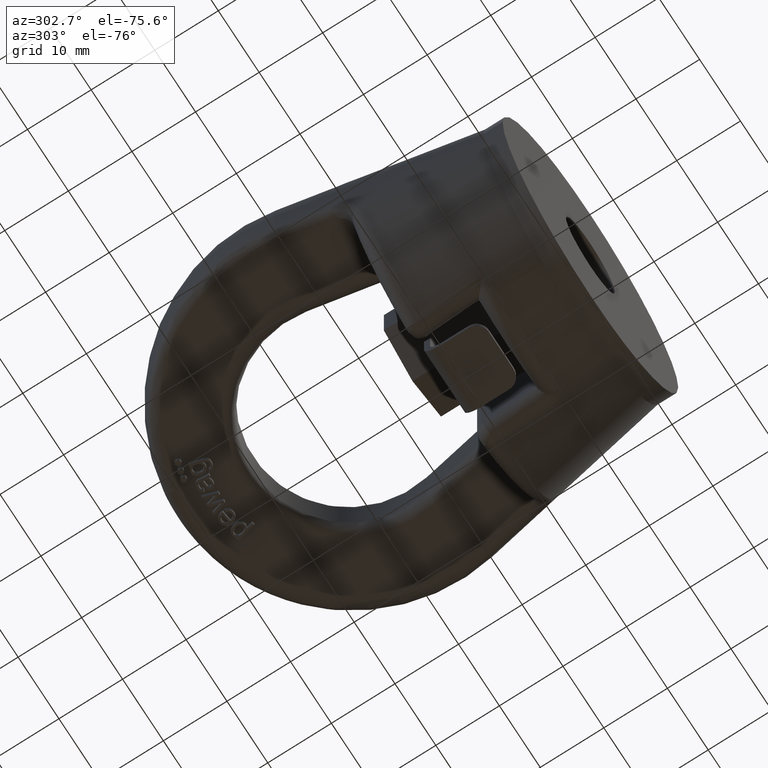
[diagram: clean part render]
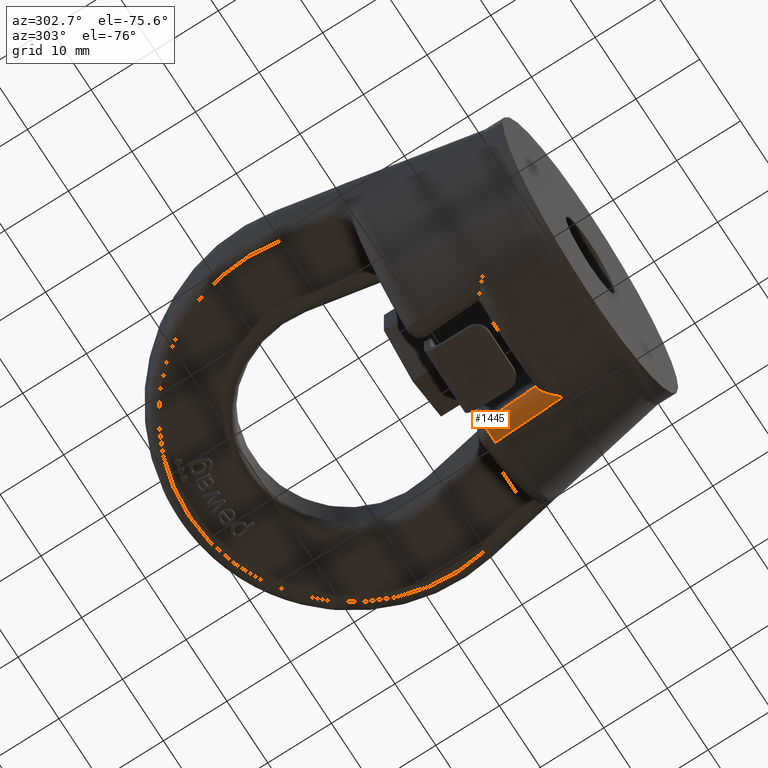
[diagram: same view with one face highlighted and labeled with its STEP entity id]
A machine part, auxiliary view. The second image highlights one B-rep face of the part: STEP entity #1445.
In plain terms, the highlighted face is a freeform B-spline surface patch.
Its self-contained STEP definition (entity closure, byte-faithful):
#1037=(
BOUNDED_SURFACE()
B_SPLINE_SURFACE(3,2,((#8554,#8555,#8556),(#8557,#8558,#8559),(#8560,#8561,
#8562),(#8563,#8564,#8565)),.UNSPECIFIED.,.F.,.F.,.F.)
B_SPLINE_SURFACE_WITH_KNOTS((4,4),(3,3),(0.,1.),(0.,1.),.UNSPECIFIED.)
GEOMETRIC_REPRESENTATION_ITEM()
RATIONAL_B_SPLINE_SURFACE(((1.,0.537545462576301,1.),(1.,0.543833961171944,
1.),(1.,0.549419756852323,1.),(1.,0.554499912207564,1.)))
REPRESENTATION_ITEM('')
SURFACE()
);
#1212=FACE_OUTER_BOUND('',#1979,.T.);
#1445=ADVANCED_FACE('',(#1212),#1037,.T.);
#1979=EDGE_LOOP('',(#3354,#3355,#3356,#3357,#3358));
#3354=ORIENTED_EDGE('',*,*,#4609,.F.);
#3355=ORIENTED_EDGE('',*,*,#4626,.T.);
#3356=ORIENTED_EDGE('',*,*,#4325,.F.);
#3357=ORIENTED_EDGE('',*,*,#4627,.F.);
#3358=ORIENTED_EDGE('',*,*,#4611,.F.);
#3940=VERTEX_POINT('',#6602);
#3941=VERTEX_POINT('',#6610);
#4130=VERTEX_POINT('',#8411);
#4131=VERTEX_POINT('',#8419);
#4132=VERTEX_POINT('',#8426);
#4325=EDGE_CURVE('',#3940,#3941,#4869,.T.);
#4609=EDGE_CURVE('',#4130,#4131,#5000,.T.);
#4611=EDGE_CURVE('',#4131,#4132,#5001,.T.);
#4626=EDGE_CURVE('',#4130,#3941,#5006,.T.);
#4627=EDGE_CURVE('',#4132,#3940,#5007,.T.);
#4869=B_SPLINE_CURVE_WITH_KNOTS('',3,(#6603,#6604,#6605,#6606,#6607,#6608,
#6609),.UNSPECIFIED.,.F.,.F.,(4,3,4),(0.,0.658722175532028,1.),
 .UNSPECIFIED.);
#5000=B_SPLINE_CURVE_WITH_KNOTS('',3,(#8412,#8413,#8414,#8415,#8416,#8417,
#8418),.UNSPECIFIED.,.F.,.F.,(4,3,4),(0.,0.414484760735074,1.),
 .UNSPECIFIED.);
#5001=B_SPLINE_CURVE_WITH_KNOTS('',3,(#8422,#8423,#8424,#8425),
 .UNSPECIFIED.,.F.,.F.,(4,4),(0.,1.),.UNSPECIFIED.);
#5006=B_SPLINE_CURVE_WITH_KNOTS('',3,(#8513,#8514,#8515,#8516,#8517,#8518,
#8519,#8520,#8521,#8522,#8523,#8524,#8525,#8526,#8527,#8528,#8529,#8530,
#8531),.UNSPECIFIED.,.F.,.F.,(4,3,3,3,3,3,4),(0.,0.157069506982715,0.327463597267809,
0.495730377638442,0.663313203288204,0.831739711890183,1.),.UNSPECIFIED.);
#5007=B_SPLINE_CURVE_WITH_KNOTS('',3,(#8532,#8533,#8534,#8535,#8536,#8537,
#8538,#8539,#8540,#8541,#8542,#8543,#8544,#8545,#8546,#8547,#8548,#8549,
#8550,#8551,#8552,#8553),.UNSPECIFIED.,.F.,.F.,(4,3,3,3,3,3,3,4),(0.,0.110519095796418,
0.220815581529207,0.332091500753021,0.507353801451674,0.751980024214066,
0.997854379311542,1.),.UNSPECIFIED.);
#6602=CARTESIAN_POINT('',(9.8436986509527,10.6307471677297,-20.7134289340295));
#6603=CARTESIAN_POINT('',(9.8436986509527,10.6307471677297,-20.7134289340295));
#6604=CARTESIAN_POINT('',(9.8261270603324,12.9553731248613,-21.2052788562981));
#6605=CARTESIAN_POINT('',(9.80964311959765,15.2808659048881,-21.6930824065875));
#6606=CARTESIAN_POINT('',(9.79406771798124,17.607032894456,-22.1776600483657));
#6607=CARTESIAN_POINT('',(9.785998241722,18.8121992047466,-22.4287153901405));
#6608=CARTESIAN_POINT('',(9.77817334054044,20.0175486590907,-22.6789007834092));
#6609=CARTESIAN_POINT('',(9.7705721548352,21.2230603757973,-22.9283069970431));
#6610=CARTESIAN_POINT('',(9.7705721548352,21.2230603757973,-22.9283069970431));
#8411=CARTESIAN_POINT('',(7.00000000000005,21.5,-21.1011767892322));
#8412=CARTESIAN_POINT('',(7.00000000000005,21.5,-21.1011767892322));
#8413=CARTESIAN_POINT('',(7.00000000000005,20.3253006100527,-20.8612686828816));
#8414=CARTESIAN_POINT('',(7.00000000000005,19.1507243329296,-20.6207567892393));
#8415=CARTESIAN_POINT('',(7.00000000000005,17.9762857267263,-20.3795752880943));
#8416=CARTESIAN_POINT('',(7.00000000000005,16.3172340359271,-20.0388741436066));
#8417=CARTESIAN_POINT('',(7.00000000000005,14.6584555780633,-19.6968388052815));
#8418=CARTESIAN_POINT('',(7.00000000000004,13.,-19.3532476555268));
#8419=CARTESIAN_POINT('',(7.00000000000004,13.,-19.3532476555268));
#8422=CARTESIAN_POINT('',(7.00000000000004,13.,-19.3532476555268));
#8423=CARTESIAN_POINT('',(7.00000000000004,13.,-19.486538751602));
#8424=CARTESIAN_POINT('',(7.0128894870163,13.,-19.620440365403));
#8425=CARTESIAN_POINT('',(7.03834485990594,13.,-19.7512782050519));
#8426=CARTESIAN_POINT('',(7.03834485990594,13.,-19.7512782050519));
#8513=CARTESIAN_POINT('',(7.00000000000005,21.5,-21.1011767892322));
#8514=CARTESIAN_POINT('',(7.00000000000005,21.4692142584465,-21.3042605953684));
#8515=CARTESIAN_POINT('',(7.03230881549454,21.438072821593,-21.5097004041404));
#8516=CARTESIAN_POINT('',(7.09468827129538,21.4087436349694,-21.7031930306246));
#8517=CARTESIAN_POINT('',(7.16221772740608,21.3769930530601,-21.9126602608233));
#8518=CARTESIAN_POINT('',(7.26690013171378,21.346543763072,-22.1135526846348));
#8519=CARTESIAN_POINT('',(7.40024199153816,21.3198779738873,-22.2894894105536));
#8520=CARTESIAN_POINT('',(7.53196153164709,21.2935366172219,-22.4632855812146));
#8521=CARTESIAN_POINT('',(7.69514599542087,21.2701827331255,-22.6173777166118));
#8522=CARTESIAN_POINT('',(7.87681847464463,21.2516819930343,-22.7394508347119));
#8523=CARTESIAN_POINT('',(8.05776859056635,21.2332548152996,-22.8610385675679));
#8524=CARTESIAN_POINT('',(8.26183915511718,21.2191550160873,-22.9540761925361));
#8525=CARTESIAN_POINT('',(8.47286732844148,21.2105043206863,-23.0111582181211));
#8526=CARTESIAN_POINT('',(8.68492656572212,21.2018113587952,-23.0685191411548));
#8527=CARTESIAN_POINT('',(8.90965609502201,21.198391412557,-23.0910862760961));
#8528=CARTESIAN_POINT('',(9.12904889911366,21.2005197231718,-23.0770423806076));
#8529=CARTESIAN_POINT('',(9.3482317276075,21.2026459968315,-23.063011926195));
#8530=CARTESIAN_POINT('',(9.56792661657947,21.2103661633478,-23.0120693381817));
#8531=CARTESIAN_POINT('',(9.77057215483459,21.2230603757972,-22.9283069970442));
#8532=CARTESIAN_POINT('',(7.03834485990594,13.,-19.7512782050519));
#8533=CARTESIAN_POINT('',(7.0690785218213,13.,-19.9092458744684));
#8534=CARTESIAN_POINT('',(7.12027372377205,12.9800988999616,-20.065768748299));
#8535=CARTESIAN_POINT('',(7.18834405943485,12.9417610380961,-20.206463383257));
#8536=CARTESIAN_POINT('',(7.25635878585513,12.9034544958861,-20.347043079424));
#8537=CARTESIAN_POINT('',(7.3428093289275,12.8459701805,-20.4755751602209));
#8538=CARTESIAN_POINT('',(7.43910061211769,12.7763280628455,-20.5838987928719));
#8539=CARTESIAN_POINT('',(7.53652048796178,12.7058696970344,-20.6934920446618));
#8540=CARTESIAN_POINT('',(7.64595618500706,12.6216865757632,-20.7853128446804));
#8541=CARTESIAN_POINT('',(7.75957309224727,12.5309231550198,-20.8582435940544));
#8542=CARTESIAN_POINT('',(7.93746517786023,12.3888131944021,-20.972432612455));
#8543=CARTESIAN_POINT('',(8.1301320266337,12.2270787662346,-21.0438586891455));
#8544=CARTESIAN_POINT('',(8.32068592382041,12.0619391556427,-21.0798876807253));
#8545=CARTESIAN_POINT('',(8.58589618606443,11.832100143801,-21.1300323298055));
#8546=CARTESIAN_POINT('',(8.85563289685161,11.5882805922952,-21.1142561043365));
#8547=CARTESIAN_POINT('',(9.10986673421687,11.3496071985139,-21.0504038730938));
#8548=CARTESIAN_POINT('',(9.36608490243155,11.1090709253332,-20.9860532662077));
#8549=CARTESIAN_POINT('',(9.61291678239824,10.867789229152,-20.8714874711438));
#8550=CARTESIAN_POINT('',(9.83780344412327,10.6368050150241,-20.7174786037128));
#8551=CARTESIAN_POINT('',(9.83977002104928,10.634785116546,-20.7161318351549));
#8552=CARTESIAN_POINT('',(9.84173506587912,10.6327658014674,-20.7147819498123));
#8553=CARTESIAN_POINT('',(9.8436986509527,10.6307471677297,-20.7134289340295));
#8554=CARTESIAN_POINT('',(7.00000000000004,10.9364221678383,-18.9248665423955));
#8555=CARTESIAN_POINT('',(7.00000000000005,10.2974772224625,-21.9964669936678));
#8556=CARTESIAN_POINT('',(9.84417950265457,10.567169335568,-20.6999759230136));
#8557=CARTESIAN_POINT('',(7.00000000000005,14.5108951888351,-19.6684175039663));
#8558=CARTESIAN_POINT('',(7.00000000000318,13.8453927825276,-22.6823671665717));
#8559=CARTESIAN_POINT('',(9.8171296605635,14.1416408803108,-21.4563905297245));
#8560=CARTESIAN_POINT('',(7.00000000000005,18.0869783592264,-20.4043117014631));
#8561=CARTESIAN_POINT('',(7.00000000000165,17.4423266105838,-23.3770704135634));
#8562=CARTESIAN_POINT('',(9.79264832859987,17.7177244919897,-22.2031890748871));
#8563=CARTESIAN_POINT('',(7.00000000000005,21.6641618503629,-21.1346993661324));
#8564=CARTESIAN_POINT('',(7.00000000000006,21.063692456664,-24.0755885751862));
#8565=CARTESIAN_POINT('',(9.77011938944727,21.2949090180926,-22.943170674132));